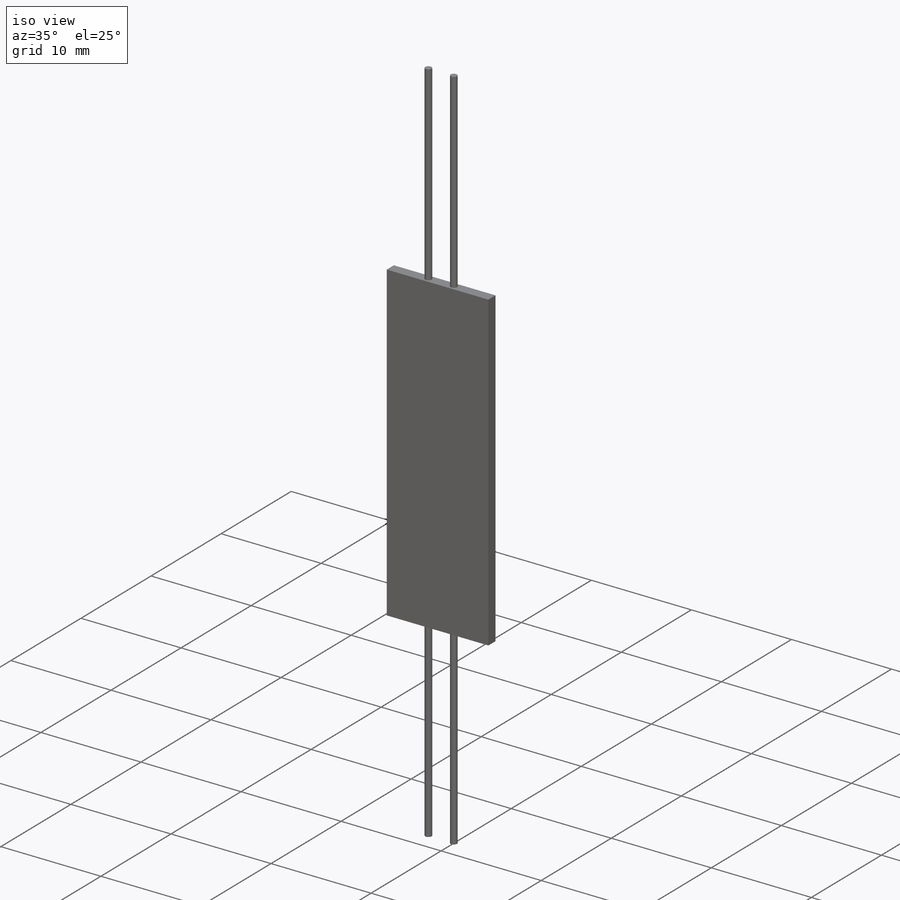
[diagram: iso view]
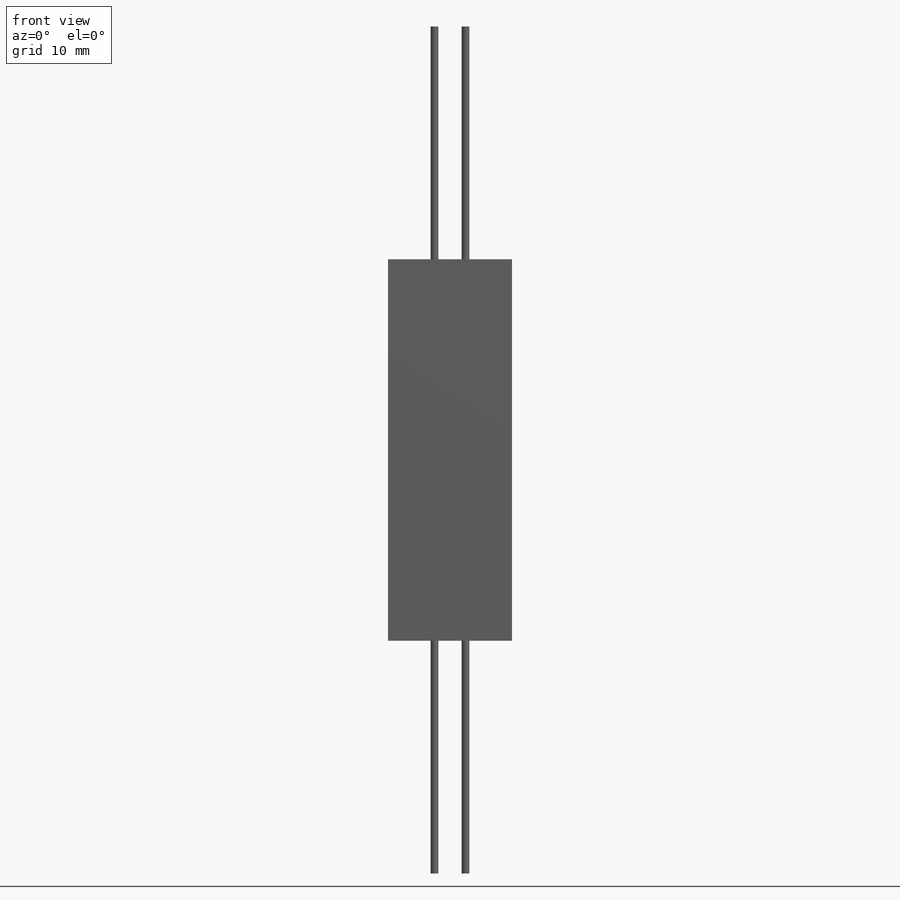
[diagram: front view]
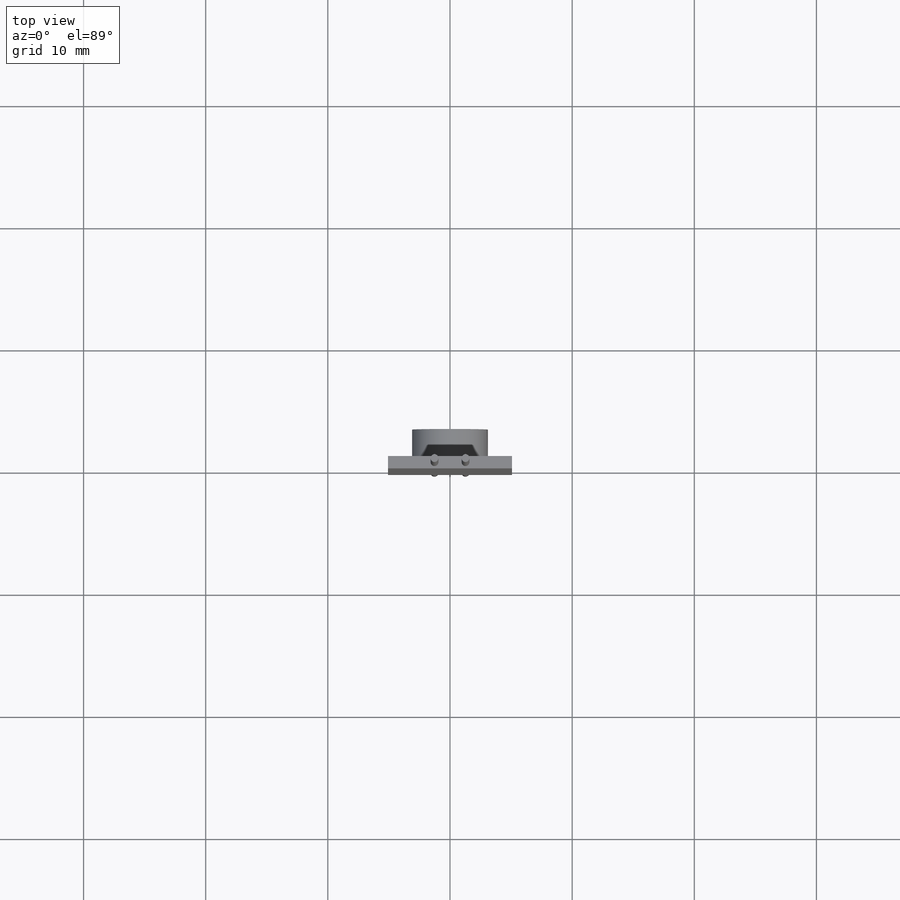
[diagram: top view]
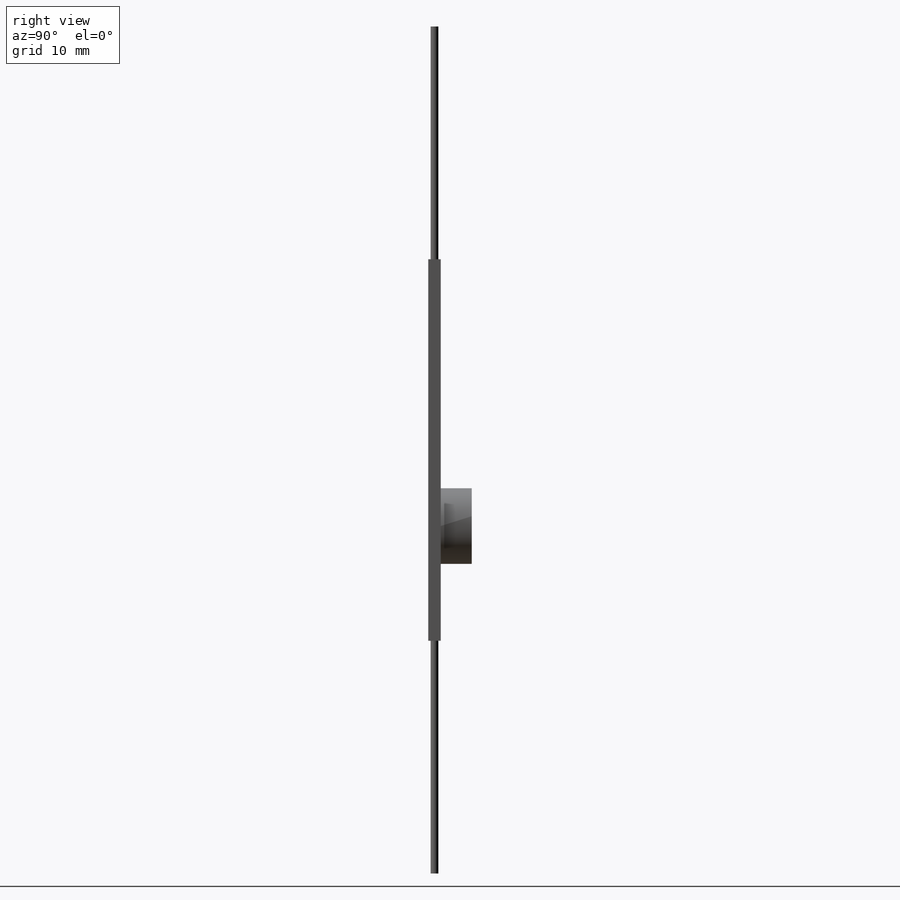
[diagram: right view]
SOLIDWORKS PART (.sldprt)
format: sldprt  version: not decoded by parser v0  size: 163,328 bytes
history: native  units: mm
features: sketch x7, extrude x3, sweep x2, material x1 (+11 scaffold rows collapsed)
feature tree (24):
  scaffold x11  (default folders/planes/origin — collapsed)
  material  "Material <not specified>"
  sketch  "Sketch3"  dims[D1=1.27mm D2=19.05mm]
  sketch  "Sketch4"  dims[D1=19.05mm D2=1.27mm]
  sketch  "3DSketch2"  dims[D1=0.635mm]
  sweep  "Sweep2"
  sketch  "3DSketch3"  dims[D1=0.635mm]
  sweep  "Sweep3"
  sketch  "Sketch5"  dims[D1=1.016mm D2=10.16mm]
  extrude  "Boss-Extrude1"  Depth=31.242mm
  sketch  "Sketch6"
  extrude  "Boss-Extrude2"  Depth=2.54mm
  sketch  "Sketch7"  dims[D3=0.635mm D4=0.635mm D1=1.27mm D2=1.27mm]
  extrude  "Boss-Extrude3"  Depth=19.05mm
decode coverage: 9 of 12 modeling features carry decoded parameters
note: suppression state not decoded; provenance and decode notes live in map.json
